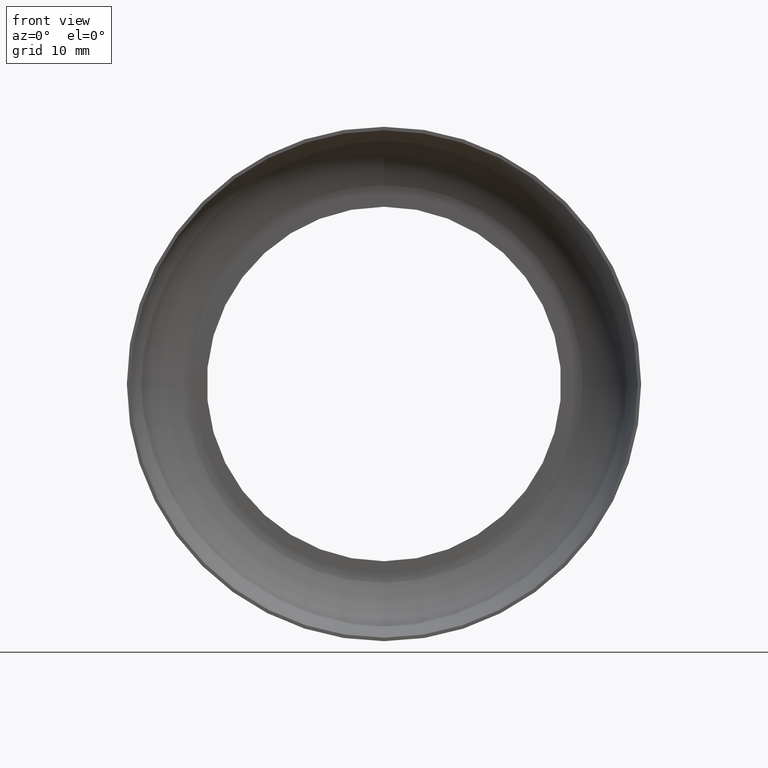
[diagram: clean part render]
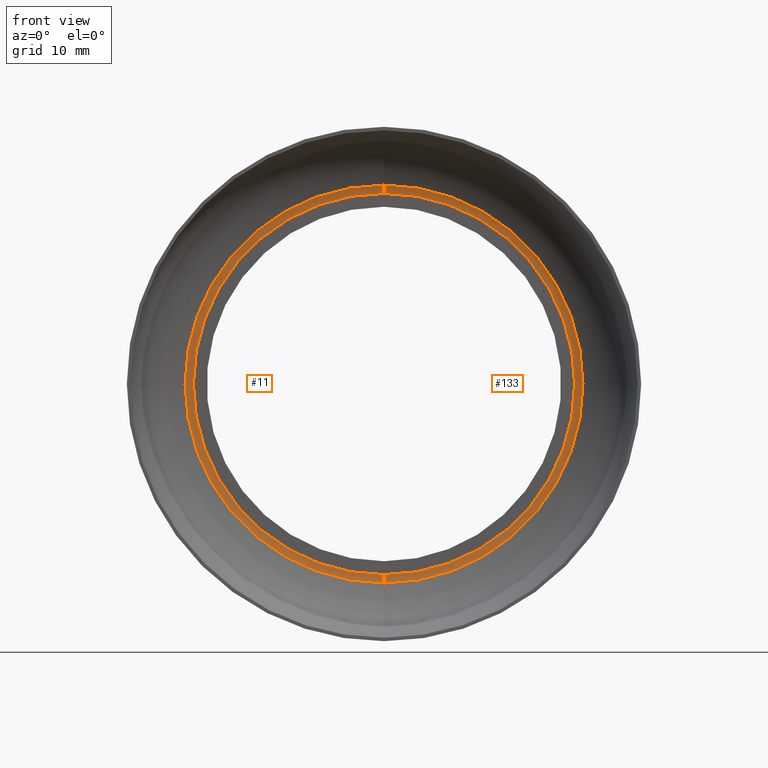
[diagram: same view with one multi-face feature highlighted, each face labeled with its STEP entity id]
A machine part, front view. The highlighted faces form ONE feature: a constant-radius fillet chain: 2 tangent blend faces with common blend radius 4.5 mm. The faces share edges in the B-rep.
Their STEP definitions:
[1] entity #133 (Torus):
#3 = EDGE_LOOP ( 'NONE', ( #71, #121, #37, #380 ) ) ;
#32 = EDGE_CURVE ( 'NONE', #188, #316, #394, .T. ) ;
#36 = CIRCLE ( 'NONE', #396, 4.500000000000000900 ) ;
#37 = ORIENTED_EDGE ( 'NONE', *, *, #137, .T. ) ;
#50 = AXIS2_PLACEMENT_3D ( 'NONE', #274, #214, #276 ) ;
#58 = VERTEX_POINT ( 'NONE', #85 ) ;
#71 = ORIENTED_EDGE ( 'NONE', *, *, #155, .F. ) ;
#82 = AXIS2_PLACEMENT_3D ( 'NONE', #279, #91, #124 ) ;
#85 = CARTESIAN_POINT ( 'NONE',  ( 0.0000000000000000000, 10.49999999999999800, 27.42582188602125000 ) ) ;
#91 = DIRECTION ( 'NONE',  ( 0.0000000000000000000, 1.000000000000000000, 0.0000000000000000000 ) ) ;
#92 = AXIS2_PLACEMENT_3D ( 'NONE', #378, #189, #161 ) ;
#108 = CARTESIAN_POINT ( 'NONE',  ( 3.987309812825029800E-015, 10.33928571428571500, 28.61771092859018900 ) ) ;
#117 = TOROIDAL_SURFACE ( 'NONE', #82, 27.42582188602125000, 4.500000000000000900 ) ;
#121 = ORIENTED_EDGE ( 'NONE', *, *, #32, .T. ) ;
#124 = DIRECTION ( 'NONE',  ( 0.0000000000000000000, 0.0000000000000000000, 1.000000000000000000 ) ) ;
#133 = ADVANCED_FACE ( 'NONE', ( #229 ), #117, .F. ) ;
#137 = EDGE_CURVE ( 'NONE', #316, #58, #162, .T. ) ;
#155 = EDGE_CURVE ( 'NONE', #188, #304, #36, .T. ) ;
#161 = DIRECTION ( 'NONE',  ( 0.0000000000000000000, 0.0000000000000000000, 1.000000000000000000 ) ) ;
#162 = CIRCLE ( 'NONE', #92, 4.500000000000000900 ) ;
#165 = CARTESIAN_POINT ( 'NONE',  ( 0.0000000000000000000, 10.49999999999999800, 0.0000000000000000000 ) ) ;
#167 = DIRECTION ( 'NONE',  ( 0.0000000000000000000, 1.000000000000000000, 0.0000000000000000000 ) ) ;
#188 = VERTEX_POINT ( 'NONE', #216 ) ;
#189 = DIRECTION ( 'NONE',  ( -1.000000000000000000, 0.0000000000000000000, 0.0000000000000000000 ) ) ;
#198 = CARTESIAN_POINT ( 'NONE',  ( 3.431676653716177400E-015, 10.49999999999999800, -27.42582188602125000 ) ) ;
#207 = CIRCLE ( 'NONE', #355, 27.42582188602125000 ) ;
#214 = DIRECTION ( 'NONE',  ( -0.0000000000000000000, -1.000000000000000000, -0.0000000000000000000 ) ) ;
#216 = CARTESIAN_POINT ( 'NONE',  ( 0.0000000000000000000, 10.33928571428571500, -28.61771092859018900 ) ) ;
#227 = DIRECTION ( 'NONE',  ( 0.0000000000000000000, 0.0000000000000000000, 1.000000000000000000 ) ) ;
#229 = FACE_OUTER_BOUND ( 'NONE', #3, .T. ) ;
#248 = DIRECTION ( 'NONE',  ( 1.000000000000000000, -0.0000000000000000000, 1.224646799147353200E-016 ) ) ;
#252 = EDGE_CURVE ( 'NONE', #58, #304, #207, .T. ) ;
#274 = CARTESIAN_POINT ( 'NONE',  ( 0.0000000000000000000, 10.33928571428571500, 0.0000000000000000000 ) ) ;
#276 = DIRECTION ( 'NONE',  ( 0.0000000000000000000, 0.0000000000000000000, -1.000000000000000000 ) ) ;
#279 = CARTESIAN_POINT ( 'NONE',  ( 0.0000000000000000000, 5.999999999999999100, 0.0000000000000000000 ) ) ;
#283 = DIRECTION ( 'NONE',  ( 1.224646799147353700E-016, 0.0000000000000000000, -1.000000000000000000 ) ) ;
#304 = VERTEX_POINT ( 'NONE', #198 ) ;
#316 = VERTEX_POINT ( 'NONE', #108 ) ;
#355 = AXIS2_PLACEMENT_3D ( 'NONE', #165, #167, #227 ) ;
#378 = CARTESIAN_POINT ( 'NONE',  ( 0.0000000000000000000, 5.999999999999999100, 27.42582188602125000 ) ) ;
#380 = ORIENTED_EDGE ( 'NONE', *, *, #252, .T. ) ;
#382 = CARTESIAN_POINT ( 'NONE',  ( 3.358694498670134500E-015, 5.999999999999999100, -27.42582188602125000 ) ) ;
#394 = CIRCLE ( 'NONE', #50, 28.61771092859018900 ) ;
#396 = AXIS2_PLACEMENT_3D ( 'NONE', #382, #248, #283 ) ;
[2] entity #11 (Torus):
#11 = ADVANCED_FACE ( 'NONE', ( #296 ), #112, .F. ) ;
#14 = CIRCLE ( 'NONE', #399, 28.61771092859018900 ) ;
#36 = CIRCLE ( 'NONE', #396, 4.500000000000000900 ) ;
#40 = EDGE_CURVE ( 'NONE', #316, #188, #14, .T. ) ;
#58 = VERTEX_POINT ( 'NONE', #85 ) ;
#64 = DIRECTION ( 'NONE',  ( 0.0000000000000000000, 0.0000000000000000000, -1.000000000000000000 ) ) ;
#73 = CARTESIAN_POINT ( 'NONE',  ( 0.0000000000000000000, 10.49999999999999800, 0.0000000000000000000 ) ) ;
#81 = CARTESIAN_POINT ( 'NONE',  ( 0.0000000000000000000, 5.999999999999999100, 0.0000000000000000000 ) ) ;
#85 = CARTESIAN_POINT ( 'NONE',  ( 0.0000000000000000000, 10.49999999999999800, 27.42582188602125000 ) ) ;
#92 = AXIS2_PLACEMENT_3D ( 'NONE', #378, #189, #161 ) ;
#108 = CARTESIAN_POINT ( 'NONE',  ( 3.987309812825029800E-015, 10.33928571428571500, 28.61771092859018900 ) ) ;
#112 = TOROIDAL_SURFACE ( 'NONE', #323, 27.42582188602125000, 4.500000000000000900 ) ;
#118 = DIRECTION ( 'NONE',  ( -0.0000000000000000000, -1.000000000000000000, -0.0000000000000000000 ) ) ;
#134 = DIRECTION ( 'NONE',  ( 0.0000000000000000000, 0.0000000000000000000, 1.000000000000000000 ) ) ;
#137 = EDGE_CURVE ( 'NONE', #316, #58, #162, .T. ) ;
#145 = DIRECTION ( 'NONE',  ( 0.0000000000000000000, 0.0000000000000000000, 1.000000000000000000 ) ) ;
#155 = EDGE_CURVE ( 'NONE', #188, #304, #36, .T. ) ;
#161 = DIRECTION ( 'NONE',  ( 0.0000000000000000000, 0.0000000000000000000, 1.000000000000000000 ) ) ;
#162 = CIRCLE ( 'NONE', #92, 4.500000000000000900 ) ;
#180 = EDGE_CURVE ( 'NONE', #304, #58, #247, .T. ) ;
#182 = ORIENTED_EDGE ( 'NONE', *, *, #40, .T. ) ;
#183 = ORIENTED_EDGE ( 'NONE', *, *, #155, .T. ) ;
#188 = VERTEX_POINT ( 'NONE', #216 ) ;
#189 = DIRECTION ( 'NONE',  ( -1.000000000000000000, 0.0000000000000000000, 0.0000000000000000000 ) ) ;
#198 = CARTESIAN_POINT ( 'NONE',  ( 3.431676653716177400E-015, 10.49999999999999800, -27.42582188602125000 ) ) ;
#201 = ORIENTED_EDGE ( 'NONE', *, *, #180, .T. ) ;
#216 = CARTESIAN_POINT ( 'NONE',  ( 0.0000000000000000000, 10.33928571428571500, -28.61771092859018900 ) ) ;
#247 = CIRCLE ( 'NONE', #389, 27.42582188602125000 ) ;
#248 = DIRECTION ( 'NONE',  ( 1.000000000000000000, -0.0000000000000000000, 1.224646799147353200E-016 ) ) ;
#251 = EDGE_LOOP ( 'NONE', ( #182, #183, #201, #312 ) ) ;
#283 = DIRECTION ( 'NONE',  ( 1.224646799147353700E-016, 0.0000000000000000000, -1.000000000000000000 ) ) ;
#296 = FACE_OUTER_BOUND ( 'NONE', #251, .T. ) ;
#301 = DIRECTION ( 'NONE',  ( 0.0000000000000000000, 1.000000000000000000, 0.0000000000000000000 ) ) ;
#304 = VERTEX_POINT ( 'NONE', #198 ) ;
#312 = ORIENTED_EDGE ( 'NONE', *, *, #137, .F. ) ;
#316 = VERTEX_POINT ( 'NONE', #108 ) ;
#322 = DIRECTION ( 'NONE',  ( 0.0000000000000000000, 1.000000000000000000, 0.0000000000000000000 ) ) ;
#323 = AXIS2_PLACEMENT_3D ( 'NONE', #81, #301, #145 ) ;
#337 = CARTESIAN_POINT ( 'NONE',  ( 0.0000000000000000000, 10.33928571428571500, 0.0000000000000000000 ) ) ;
#378 = CARTESIAN_POINT ( 'NONE',  ( 0.0000000000000000000, 5.999999999999999100, 27.42582188602125000 ) ) ;
#382 = CARTESIAN_POINT ( 'NONE',  ( 3.358694498670134500E-015, 5.999999999999999100, -27.42582188602125000 ) ) ;
#389 = AXIS2_PLACEMENT_3D ( 'NONE', #73, #322, #134 ) ;
#396 = AXIS2_PLACEMENT_3D ( 'NONE', #382, #248, #283 ) ;
#399 = AXIS2_PLACEMENT_3D ( 'NONE', #337, #118, #64 ) ;